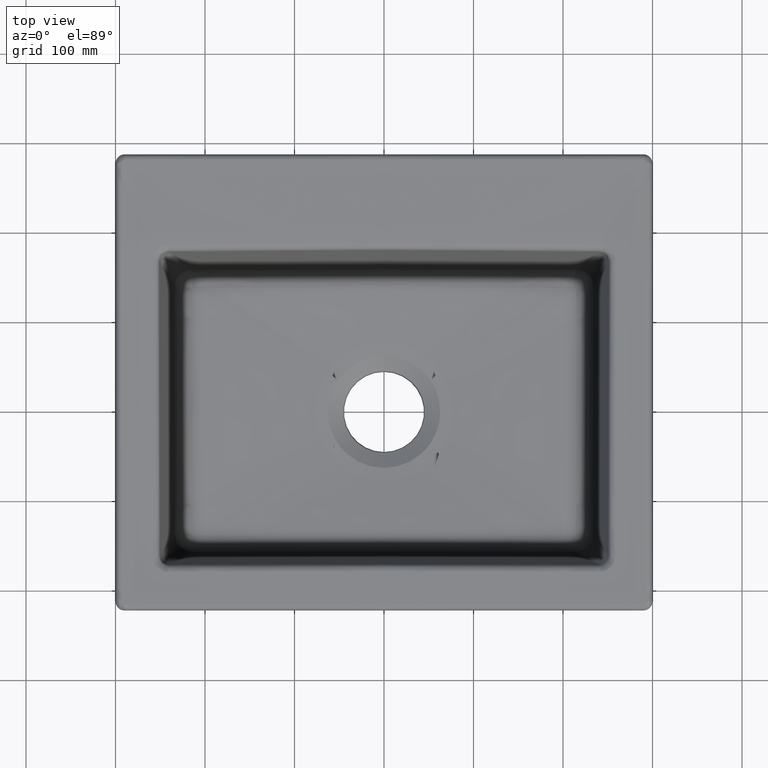
[diagram: clean part render]
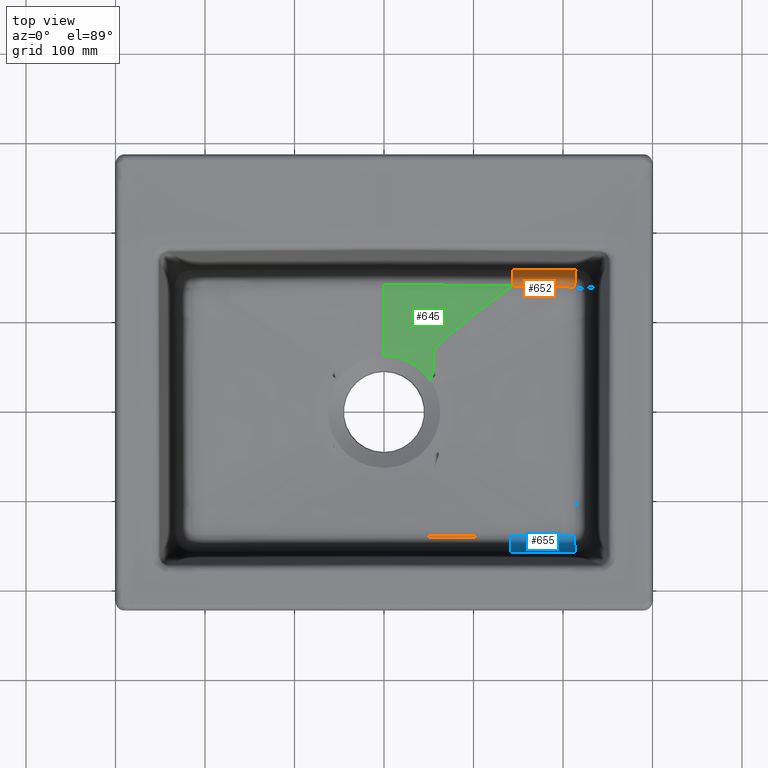
[diagram: same view with three faces highlighted in distinct colors, each labeled with its STEP entity id]
A machine part, top view with three faces highlighted in distinct colors.
Their STEP definitions:

[orange] entity #652 — the highlighted face is a freeform B-spline surface patch.
#88=(
BOUNDED_SURFACE()
B_SPLINE_SURFACE(2,3,((#7590,#7591,#7592,#7593,#7594,#7595),(#7596,#7597,
#7598,#7599,#7600,#7601),(#7602,#7603,#7604,#7605,#7606,#7607)),
 .UNSPECIFIED.,.F.,.F.,.F.)
B_SPLINE_SURFACE_WITH_KNOTS((3,3),(4,2,4),(0.,1.),(0.,0.413742758938872,
1.),.UNSPECIFIED.)
GEOMETRIC_REPRESENTATION_ITEM()
RATIONAL_B_SPLINE_SURFACE(((1.00307700598819,1.00311792466977,1.00315934199381,
1.00326099365629,1.00332165730036,1.00338471349754),(0.771876112746913,
0.768842472663706,0.765771864092816,0.758235586139558,0.753738088781949,
0.749063211687118),(1.,1.,1.,1.,1.,1.)))
REPRESENTATION_ITEM('')
SURFACE()
);
#286=(
BOUNDED_CURVE()
B_SPLINE_CURVE(2,(#7587,#7588,#7589),.UNSPECIFIED.,.F.,.F.)
B_SPLINE_CURVE_WITH_KNOTS((3,3),(0.,1.),.UNSPECIFIED.)
CURVE()
GEOMETRIC_REPRESENTATION_ITEM()
RATIONAL_B_SPLINE_CURVE((1.,0.773404626129603,1.))
REPRESENTATION_ITEM('')
);
#652=ADVANCED_FACE('',(#1111),#88,.F.);
#1111=FACE_OUTER_BOUND('',#1475,.T.);
#1475=EDGE_LOOP('',(#1914,#1915,#1916,#1917));
#1914=ORIENTED_EDGE('',*,*,#4074,.F.);
#1915=ORIENTED_EDGE('',*,*,#4082,.F.);
#1916=ORIENTED_EDGE('',*,*,#4085,.T.);
#1917=ORIENTED_EDGE('',*,*,#4086,.F.);
#3570=VERTEX_POINT('',#6610);
#3578=VERTEX_POINT('',#7368);
#3585=VERTEX_POINT('',#7517);
#3587=VERTEX_POINT('',#7586);
#4074=EDGE_CURVE('',#3578,#3570,#4915,.T.);
#4082=EDGE_CURVE('',#3585,#3578,#4921,.T.);
#4085=EDGE_CURVE('',#3585,#3587,#4924,.T.);
#4086=EDGE_CURVE('',#3570,#3587,#286,.T.);
#4915=B_SPLINE_CURVE_WITH_KNOTS('',3,(#7369,#7370,#7371,#7372),
 .UNSPECIFIED.,.F.,.F.,(4,4),(0.,1.),.UNSPECIFIED.);
#4921=B_SPLINE_CURVE_WITH_KNOTS('',3,(#7510,#7511,#7512,#7513,#7514,#7515,
#7516),.UNSPECIFIED.,.F.,.F.,(4,1,1,1,4),(0.,0.25,0.5,0.75,1.),
 .UNSPECIFIED.);
#4924=B_SPLINE_CURVE_WITH_KNOTS('',3,(#7582,#7583,#7584,#7585),
 .UNSPECIFIED.,.F.,.F.,(4,4),(0.,1.),.UNSPECIFIED.);
#6610=CARTESIAN_POINT('',(143.213835688709,140.421346586067,-191.337902037196));
#7368=CARTESIAN_POINT('',(212.8811973916,139.230496036239,-190.20972328752));
#7369=CARTESIAN_POINT('',(212.881173005976,139.23046644591,-190.20965082192));
#7370=CARTESIAN_POINT('',(186.720492449148,139.635409455536,-191.032082951962));
#7371=CARTESIAN_POINT('',(163.477435009731,140.041609264101,-191.312786718579));
#7372=CARTESIAN_POINT('',(143.213835750659,140.421346231353,-191.337898085801));
#7510=CARTESIAN_POINT('',(214.546661466373,158.261750682267,-172.832980509484));
#7511=CARTESIAN_POINT('',(214.524877193754,158.012819763941,-175.163526166143));
#7512=CARTESIAN_POINT('',(214.403893582472,156.63032873542,-179.726917566483));
#7513=CARTESIAN_POINT('',(214.020339254706,152.247417600024,-185.364011372703));
#7514=CARTESIAN_POINT('',(213.490486168482,146.192736884356,-189.092346693247));
#7515=CARTESIAN_POINT('',(213.085368951598,141.563424600581,-190.111057247534));
#7516=CARTESIAN_POINT('',(212.881213137508,139.230517040535,-190.209783810634));
#7517=CARTESIAN_POINT('',(214.547990154662,158.262261195666,-172.832980508093));
#7582=CARTESIAN_POINT('',(214.546661466468,158.261750682325,-172.832980508934));
#7583=CARTESIAN_POINT('',(190.798501300535,158.375508509999,-172.832980508934));
#7584=CARTESIAN_POINT('',(167.05034890571,158.490089830204,-172.832980508934));
#7585=CARTESIAN_POINT('',(143.302202150938,158.60549464293,-172.832980508934));
#7586=CARTESIAN_POINT('',(143.30220207373,158.605494643305,-172.832980508934));
#7587=CARTESIAN_POINT('',(143.213835558196,140.42134694124,-191.337905987739));
#7588=CARTESIAN_POINT('',(143.29317995438,156.748936065872,-189.87914832289));
#7589=CARTESIAN_POINT('',(143.302201955034,158.605494643882,-172.832980508934));
#7590=CARTESIAN_POINT('',(143.213009017288,140.251220003999,-191.35233209889));
#7591=CARTESIAN_POINT('',(156.273834651247,140.005350458719,-191.334653674804));
#7592=CARTESIAN_POINT('',(169.334739782715,139.773457517582,-191.209478757473));
#7593=CARTESIAN_POINT('',(200.90201012729,139.237002837256,-190.637073578079));
#7594=CARTESIAN_POINT('',(219.41084270142,139.057609945069,-190.074084008019));
#7595=CARTESIAN_POINT('',(237.912521026997,138.45884043711,-189.292787274432));
#7596=CARTESIAN_POINT('',(143.293101317311,156.732713712373,-190.028095384463));
#7597=CARTESIAN_POINT('',(156.354560460186,156.659703361888,-190.151028854788));
#7598=CARTESIAN_POINT('',(169.416082770336,156.599911061321,-190.169245511308));
#7599=CARTESIAN_POINT('',(201.039558463385,156.487476300728,-189.950485443536));
#7600=CARTESIAN_POINT('',(219.548897934171,156.448776761475,-189.601772392535));
#7601=CARTESIAN_POINT('',(238.107217839289,156.434821689662,-189.03595070886));
#7602=CARTESIAN_POINT('',(143.302202150938,158.60549464293,-172.832980508934));
#7603=CARTESIAN_POINT('',(156.363682866364,158.542021996228,-172.832980506189));
#7604=CARTESIAN_POINT('',(169.425165286902,158.478798455362,-172.832980509483));
#7605=CARTESIAN_POINT('',(200.994260334779,158.326591721577,-172.832980508157));
#7606=CARTESIAN_POINT('',(219.501875211259,158.2378595708,-172.83298051285));
#7607=CARTESIAN_POINT('',(238.00949433355,158.149627576179,-172.832980504441));

[blue] entity #655 — the highlighted face is a freeform B-spline surface patch.
#90=(
BOUNDED_SURFACE()
B_SPLINE_SURFACE(2,3,((#7774,#7775,#7776,#7777,#7778,#7779),(#7780,#7781,
#7782,#7783,#7784,#7785),(#7786,#7787,#7788,#7789,#7790,#7791)),
 .UNSPECIFIED.,.F.,.F.,.F.)
B_SPLINE_SURFACE_WITH_KNOTS((3,3),(4,2,4),(0.,1.),(0.,0.591743193893133,
1.),.UNSPECIFIED.)
GEOMETRIC_REPRESENTATION_ITEM()
RATIONAL_B_SPLINE_SURFACE(((1.00340360549189,1.00334257517243,1.00328301227672,
1.00318241104476,1.00314147166454,1.00310053917212),(0.748409792947587,
0.752921076862388,0.757323890672533,0.764760206320413,0.76778639345402,
0.770812071449796),(1.,1.,1.,1.,1.,1.)))
REPRESENTATION_ITEM('')
SURFACE()
);
#655=ADVANCED_FACE('',(#1114),#90,.F.);
#1114=FACE_OUTER_BOUND('',#1478,.T.);
#1478=EDGE_LOOP('',(#1926,#1927,#1928,#1929));
#1926=ORIENTED_EDGE('',*,*,#4067,.T.);
#1927=ORIENTED_EDGE('',*,*,#4091,.F.);
#1928=ORIENTED_EDGE('',*,*,#4092,.T.);
#1929=ORIENTED_EDGE('',*,*,#4093,.F.);
#3572=VERTEX_POINT('',#6805);
#3574=VERTEX_POINT('',#7093);
#3589=VERTEX_POINT('',#7657);
#3590=VERTEX_POINT('',#7762);
#4067=EDGE_CURVE('',#3574,#3572,#4908,.T.);
#4091=EDGE_CURVE('',#3589,#3572,#4929,.T.);
#4092=EDGE_CURVE('',#3589,#3590,#4930,.T.);
#4093=EDGE_CURVE('',#3574,#3590,#4931,.T.);
#4908=B_SPLINE_CURVE_WITH_KNOTS('',3,(#7053,#7054,#7055,#7056,#7057,#7058,
#7059,#7060,#7061,#7062,#7063,#7064,#7065,#7066,#7067,#7068,#7069,#7070,
#7071,#7072,#7073,#7074,#7075,#7076,#7077,#7078,#7079,#7080,#7081,#7082,
#7083,#7084,#7085,#7086,#7087,#7088,#7089,#7090,#7091,#7092),
 .UNSPECIFIED.,.F.,.F.,(4,2,2,2,2,2,2,2,2,1,1,2,1,2,2,2,2,2,2,1,1,1,4),
(0.,0.125000000000008,0.140625000000009,0.15625000000001,0.187500000000012,
0.250000000000018,0.28125000000002,0.285156250000021,0.289062500000021,
0.296875000000021,0.312500000000022,0.375000000000021,0.40625000000002,
0.421875000000021,0.437500000000021,0.500000000000018,0.562500000000014,
0.570312500000014,0.578125000000014,0.593750000000015,0.625000000000014,
0.750000000000009,1.),.UNSPECIFIED.);
#4929=B_SPLINE_CURVE_WITH_KNOTS('',3,(#7658,#7659,#7660,#7661,#7662,#7663,
#7664,#7665,#7666,#7667),.UNSPECIFIED.,.F.,.F.,(4,2,2,2,4),(0.,0.250012143482046,
0.500024286964094,0.75003643044614,1.),.UNSPECIFIED.);
#4930=B_SPLINE_CURVE_WITH_KNOTS('',3,(#7756,#7757,#7758,#7759,#7760,#7761),
 .UNSPECIFIED.,.F.,.F.,(4,2,4),(0.,0.550003489536306,1.),.UNSPECIFIED.);
#4931=B_SPLINE_CURVE_WITH_KNOTS('',3,(#7763,#7764,#7765,#7766,#7767,#7768,
#7769,#7770,#7771,#7772,#7773),.UNSPECIFIED.,.F.,.F.,(4,1,1,1,1,1,1,1,4),
(0.,0.125000075672271,0.250000151344543,0.375000227016814,0.500000302689086,
0.625000378361357,0.750000454033628,0.8750005297059,1.),.UNSPECIFIED.);
#6805=CARTESIAN_POINT('',(141.269163564637,-138.983223211528,-191.374871971036));
#7053=CARTESIAN_POINT('',(212.395710851262,-138.216247405746,-190.211363066632));
#7054=CARTESIAN_POINT('',(210.262698658806,-138.241458849857,-190.278725334559));
#7055=CARTESIAN_POINT('',(207.402984458089,-138.27328596207,-190.36645195397));
#7056=CARTESIAN_POINT('',(203.368243660899,-138.313587070848,-190.47900771426));
#7057=CARTESIAN_POINT('',(202.908584135587,-138.318133030657,-190.491701104691));
#7058=CARTESIAN_POINT('',(201.966555109596,-138.327363154408,-190.517421650377));
#7059=CARTESIAN_POINT('',(201.422804163125,-138.332637581006,-190.532098878328));
#7060=CARTESIAN_POINT('',(199.941987990655,-138.346858852703,-190.571570075952));
#7061=CARTESIAN_POINT('',(199.021093065568,-138.355535872184,-190.595490925975));
#7062=CARTESIAN_POINT('',(196.457358334614,-138.379493247664,-190.660780835424));
#7063=CARTESIAN_POINT('',(195.013468803446,-138.392732266952,-190.695710977575));
#7064=CARTESIAN_POINT('',(193.245538538715,-138.408968500805,-190.737437620316));
#7065=CARTESIAN_POINT('',(192.7225457198,-138.413767168555,-190.749559999103));
#7066=CARTESIAN_POINT('',(192.208785748715,-138.418476238878,-190.761339495308));
#7067=CARTESIAN_POINT('',(192.152737514992,-138.418989875078,-190.762622476599));
#7068=CARTESIAN_POINT('',(192.042713462438,-138.419997934034,-190.765137187718));
#7069=CARTESIAN_POINT('',(191.911437712481,-138.421200642695,-190.768132465688));
#7070=CARTESIAN_POINT('',(191.601959421117,-138.424036646506,-190.775167428339));
#7071=CARTESIAN_POINT('',(190.986634058047,-138.429677393542,-190.789072500281));
#7072=CARTESIAN_POINT('',(188.770384592728,-138.450032798622,-190.838275312774));
#7073=CARTESIAN_POINT('',(186.876654277525,-138.467677113549,-190.877800280659));
#7074=CARTESIAN_POINT('',(184.72037970415,-138.488249414677,-190.920916799449));
#7075=CARTESIAN_POINT('',(183.671292840919,-138.498381377426,-190.941395654021));
#7076=CARTESIAN_POINT('',(182.665781686753,-138.508292474616,-190.96037394908));
#7077=CARTESIAN_POINT('',(182.005124404111,-138.514850098544,-190.972705198233));
#7078=CARTESIAN_POINT('',(181.744207800428,-138.517455471409,-190.977514772726));
#7079=CARTESIAN_POINT('',(180.462050245092,-138.530492620173,-191.000971760387));
#7080=CARTESIAN_POINT('',(179.208301479194,-138.543659926079,-191.02324682418));
#7081=CARTESIAN_POINT('',(176.244755766784,-138.575376648437,-191.072627498609));
#7082=CARTESIAN_POINT('',(174.534959190431,-138.593972231175,-191.099731160742));
#7083=CARTESIAN_POINT('',(172.354911026948,-138.618131642752,-191.131266131332));
#7084=CARTESIAN_POINT('',(172.109120577948,-138.620861073163,-191.134784019085));
#7085=CARTESIAN_POINT('',(171.610413928167,-138.626410697292,-191.141841160374));
#7086=CARTESIAN_POINT('',(171.461621168128,-138.628069737811,-191.143920283284));
#7087=CARTESIAN_POINT('',(170.905956876117,-138.634267417658,-191.151645734535));
#7088=CARTESIAN_POINT('',(169.794628242026,-138.646687500181,-191.166834586715));
#7089=CARTESIAN_POINT('',(165.719756034468,-138.692501890689,-191.219648093369));
#7090=CARTESIAN_POINT('',(156.088235602037,-138.802983601538,-191.321854133333));
#7091=CARTESIAN_POINT('',(147.19759232435,-138.910123747859,-191.366576149756));
#7092=CARTESIAN_POINT('',(141.270495582658,-138.98410756711,-191.374783816506));
#7093=CARTESIAN_POINT('',(212.395708241728,-138.216244264892,-190.211281611804));
#7657=CARTESIAN_POINT('',(141.238740536492,-157.134868575765,-172.832980509053));
#7658=CARTESIAN_POINT('',(141.238124676014,-157.134867575759,-172.832980508935));
#7659=CARTESIAN_POINT('',(141.238494684551,-156.906998140621,-175.027750010344));
#7660=CARTESIAN_POINT('',(141.239443374177,-156.322748461809,-177.316398004516));
#7661=CARTESIAN_POINT('',(141.242654845018,-154.344966944579,-181.681938132374));
#7662=CARTESIAN_POINT('',(141.244920981401,-152.949368829295,-183.750277739652));
#7663=CARTESIAN_POINT('',(141.250464684684,-149.535283996641,-187.237549394667));
#7664=CARTESIAN_POINT('',(141.253731519428,-147.523406667932,-188.649730370048));
#7665=CARTESIAN_POINT('',(141.260593397293,-143.297525168525,-190.621067357515));
#7666=CARTESIAN_POINT('',(141.264175137367,-141.091713666819,-191.182719898681));
#7667=CARTESIAN_POINT('',(141.267598852665,-138.983221586621,-191.374882019974));
#7756=CARTESIAN_POINT('',(141.238849218468,-157.134868752252,-172.832980508935));
#7757=CARTESIAN_POINT('',(154.566934117305,-157.15651055152,-172.832980505204));
#7758=CARTESIAN_POINT('',(167.895019221762,-157.178065900871,-172.832980509314));
#7759=CARTESIAN_POINT('',(192.127747895531,-157.21710001809,-172.832980508623));
#7760=CARTESIAN_POINT('',(203.032391410848,-157.234607365206,-172.832980510009));
#7761=CARTESIAN_POINT('',(213.937035087009,-157.252056843215,-172.832980509551));
#7762=CARTESIAN_POINT('',(213.937109503907,-157.251990066908,-172.832958751892));
#7763=CARTESIAN_POINT('',(212.395708605202,-138.216247182914,-190.211349205204));
#7764=CARTESIAN_POINT('',(212.490285808926,-139.383435000883,-190.161254586984));
#7765=CARTESIAN_POINT('',(212.678745964104,-141.70887365047,-189.859949092102));
#7766=CARTESIAN_POINT('',(212.951286509274,-145.072076963672,-188.82601128124));
#7767=CARTESIAN_POINT('',(213.205831156175,-148.213160844125,-187.237365967298));
#7768=CARTESIAN_POINT('',(213.434449891894,-151.034323213298,-185.127927267241));
#7769=CARTESIAN_POINT('',(213.629139598807,-153.436805868748,-182.548233848333));
#7770=CARTESIAN_POINT('',(213.783329250304,-155.339527007762,-179.577860637645));
#7771=CARTESIAN_POINT('',(213.890985240296,-156.668018029824,-176.307289671188));
#7772=CARTESIAN_POINT('',(213.92843716725,-157.130219772371,-173.998706700113));
#7773=CARTESIAN_POINT('',(213.938310750947,-157.252057114879,-172.832997446302));
#7774=CARTESIAN_POINT('',(239.207691875541,-137.554349812905,-189.214936688012));
#7775=CARTESIAN_POINT('',(219.891535291892,-138.083695614295,-190.046313234941));
#7776=CARTESIAN_POINT('',(200.571721081184,-138.144931950499,-190.643145632578));
#7777=CARTESIAN_POINT('',(167.924954348616,-138.494682566606,-191.240064475146));
#7778=CARTESIAN_POINT('',(154.596425406629,-138.647433800666,-191.369445875135));
#7779=CARTESIAN_POINT('',(141.267874816809,-138.813191550315,-191.38958645647));
#7780=CARTESIAN_POINT('',(239.294903855849,-155.599308442356,-188.974936012102));
#7781=CARTESIAN_POINT('',(219.922253858963,-155.510240083831,-189.578997267253));
#7782=CARTESIAN_POINT('',(200.603389096457,-155.445056023746,-189.949343222349));
#7783=CARTESIAN_POINT('',(167.897698559524,-155.374355287525,-190.176153242412));
#7784=CARTESIAN_POINT('',(154.5693748525,-155.356546969106,-190.157478852399));
#7785=CARTESIAN_POINT('',(141.241035667663,-155.349136792938,-190.032599648991));
#7786=CARTESIAN_POINT('',(239.178882336629,-157.292345181298,-172.832980503574));
#7787=CARTESIAN_POINT('',(219.860289244343,-157.261590012523,-172.832980513157));
#7788=CARTESIAN_POINT('',(200.541696627181,-157.230653219856,-172.832980508383));
#7789=CARTESIAN_POINT('',(167.894777704868,-157.178065511835,-172.832980509314));
#7790=CARTESIAN_POINT('',(154.566451083527,-157.156509770316,-172.832980505204));
#7791=CARTESIAN_POINT('',(141.238124667811,-157.134867575745,-172.832980508935));

[green] entity #645 — the highlighted face is a freeform B-spline surface patch.
#285=(
BOUNDED_CURVE()
B_SPLINE_CURVE(3,(#6605,#6606,#6607,#6608),.UNSPECIFIED.,.F.,.F.)
B_SPLINE_CURVE_WITH_KNOTS((4,4),(0.,1.),.UNSPECIFIED.)
CURVE()
GEOMETRIC_REPRESENTATION_ITEM()
RATIONAL_B_SPLINE_CURVE((0.999999992173693,0.999999992189371,0.999999992111018,
0.999999992004931))
REPRESENTATION_ITEM('')
);
#645=ADVANCED_FACE('',(#1104),#1006,.F.);
#1006=B_SPLINE_SURFACE_WITH_KNOTS('',3,3,((#6711,#6712,#6713,#6714,#6715,
#6716,#6717),(#6718,#6719,#6720,#6721,#6722,#6723,#6724),(#6725,#6726,#6727,
#6728,#6729,#6730,#6731),(#6732,#6733,#6734,#6735,#6736,#6737,#6738),(#6739,
#6740,#6741,#6742,#6743,#6744,#6745),(#6746,#6747,#6748,#6749,#6750,#6751,
#6752),(#6753,#6754,#6755,#6756,#6757,#6758,#6759),(#6760,#6761,#6762,#6763,
#6764,#6765,#6766),(#6767,#6768,#6769,#6770,#6771,#6772,#6773),(#6774,#6775,
#6776,#6777,#6778,#6779,#6780),(#6781,#6782,#6783,#6784,#6785,#6786,#6787)),
 .UNSPECIFIED.,.F.,.F.,.F.,(4,1,1,1,1,1,1,1,4),(4,3,4),(0.,0.125,0.25,0.375,
0.5,0.625,0.75,0.875,1.),(0.,0.99009900990099,1.),.UNSPECIFIED.);
#1104=FACE_OUTER_BOUND('',#1468,.T.);
#1468=EDGE_LOOP('',(#1880,#1881,#1882,#1883));
#1880=ORIENTED_EDGE('',*,*,#4060,.F.);
#1881=ORIENTED_EDGE('',*,*,#4061,.T.);
#1882=ORIENTED_EDGE('',*,*,#4056,.F.);
#1883=ORIENTED_EDGE('',*,*,#4062,.T.);
#3563=VERTEX_POINT('',#6561);
#3566=VERTEX_POINT('',#6587);
#3569=VERTEX_POINT('',#6609);
#3570=VERTEX_POINT('',#6610);
#4056=EDGE_CURVE('',#3566,#3563,#4901,.T.);
#4060=EDGE_CURVE('',#3569,#3570,#285,.T.);
#4061=EDGE_CURVE('',#3569,#3563,#4902,.T.);
#4062=EDGE_CURVE('',#3566,#3570,#4903,.T.);
#4901=B_SPLINE_CURVE_WITH_KNOTS('',3,(#6588,#6589,#6590,#6591,#6592,#6593,
#6594,#6595,#6596,#6597),.UNSPECIFIED.,.F.,.F.,(4,2,2,2,4),(0.,0.25,0.5,
0.75,1.),.UNSPECIFIED.);
#4902=B_SPLINE_CURVE_WITH_KNOTS('',3,(#6611,#6612,#6613,#6614,#6615,#6616,
#6617,#6618,#6619,#6620,#6621,#6622,#6623,#6624,#6625,#6626,#6627),
 .UNSPECIFIED.,.F.,.F.,(4,2,2,1,1,1,2,2,2,4),(0.,0.249999999999992,0.374999999999989,
0.437499999999987,0.468749999999986,0.484374999999986,0.488281249999986,
0.492187499999986,0.499999999999985,1.),.UNSPECIFIED.);
#4903=B_SPLINE_CURVE_WITH_KNOTS('',3,(#6628,#6629,#6630,#6631,#6632,#6633,
#6634,#6635,#6636,#6637,#6638,#6639,#6640,#6641,#6642,#6643,#6644,#6645,
#6646,#6647,#6648,#6649,#6650,#6651,#6652,#6653,#6654,#6655,#6656,#6657,
#6658,#6659,#6660,#6661,#6662,#6663,#6664,#6665,#6666,#6667,#6668,#6669,
#6670,#6671,#6672,#6673,#6674,#6675,#6676,#6677,#6678,#6679,#6680,#6681,
#6682,#6683,#6684,#6685,#6686,#6687,#6688,#6689,#6690,#6691,#6692,#6693,
#6694,#6695,#6696,#6697,#6698,#6699,#6700,#6701,#6702,#6703,#6704,#6705,
#6706,#6707,#6708,#6709,#6710),.UNSPECIFIED.,.F.,.F.,(4,2,2,2,1,1,1,2,2,
2,2,2,2,2,2,1,2,2,2,2,1,1,2,2,2,2,2,1,1,1,2,2,2,2,2,2,2,2,2,2,2,2,1,1,2,
2,4),(0.,0.0312500000000004,0.0468750000000005,0.0546875000000006,0.0585937500000007,
0.0605468750000007,0.0615234375000007,0.0620117187500006,0.0625000000000006,
0.0703125000000003,0.0742187500000001,0.076171875,0.0781249999999999,0.0859374999999998,
0.0898437499999997,0.0917968749999996,0.0927734374999996,0.0937499999999996,
0.109374999999997,0.117187499999996,0.121093749999996,0.123046874999996,
0.124023437499995,0.124999999999995,0.187499999999982,0.218749999999975,
0.234374999999972,0.24218749999997,0.246093749999969,0.248046874999969,
0.249023437499969,0.249999999999969,0.374999999999979,0.437499999999983,
0.468749999999986,0.484374999999987,0.492187499999988,0.499999999999988,
0.624999999999995,0.687499999999999,0.718750000000001,0.734375000000002,
0.742187500000003,0.746093750000003,0.748046875000003,0.750000000000003,
1.),.UNSPECIFIED.);
#6561=CARTESIAN_POINT('',(1.57980973732951E-13,62.7624659108409,-199.832980489374));
#6587=CARTESIAN_POINT('',(52.0629073764796,35.0511171394943,-199.832980508934));
#6588=CARTESIAN_POINT('',(52.0629073764795,35.0511171394943,-199.832980508934));
#6589=CARTESIAN_POINT('',(49.1797240485121,39.333631330297,-199.832980508934));
#6590=CARTESIAN_POINT('',(45.8357404364214,43.1770957164454,-199.832979896847));
#6591=CARTESIAN_POINT('',(38.2572836224557,50.0155673720489,-199.832979741132));
#6592=CARTESIAN_POINT('',(33.9929593687454,53.0048534290093,-199.832981709259));
#6593=CARTESIAN_POINT('',(25.0074378318653,57.7898291256899,-199.832979300899));
#6594=CARTESIAN_POINT('',(20.1749273708309,59.6520694219108,-199.832980609979));
#6595=CARTESIAN_POINT('',(10.2293311303918,62.135006666836,-199.832975145199));
#6596=CARTESIAN_POINT('',(5.16263914425132,62.7624585807852,-199.83298478698));
#6597=CARTESIAN_POINT('',(2.61198996323488E-13,62.76246604988,-199.832980474696));
#6605=CARTESIAN_POINT('',(-3.00064115445123E-9,142.12284143355,-191.454663846159));
#6606=CARTESIAN_POINT('',(47.7395406718757,141.88312122612,-191.451420884323));
#6607=CARTESIAN_POINT('',(95.4773726894927,141.315920807586,-191.397046040717));
#6608=CARTESIAN_POINT('',(143.213835566132,140.421347386685,-191.337905947925));
#6609=CARTESIAN_POINT('',(0.,142.122841873135,-191.454663972532));
#6610=CARTESIAN_POINT('',(143.213835688709,140.421346586067,-191.337902037196));
#6611=CARTESIAN_POINT('',(-4.99531338698161E-6,142.122842348109,-191.454664018839));
#6612=CARTESIAN_POINT('',(-5.36948843206893E-5,134.157015449285,-192.29565106158));
#6613=CARTESIAN_POINT('',(-0.000334258533348198,126.890734056261,-193.062784428368));
#6614=CARTESIAN_POINT('',(-0.000304047597687523,117.040619979414,-194.102703964622));
#6615=CARTESIAN_POINT('',(-0.000237275696504557,113.932133359172,-194.430880391051));
#6616=CARTESIAN_POINT('',(-0.00011847867585989,109.531729930161,-194.895449902214));
#6617=CARTESIAN_POINT('',(-5.61523458599481E-5,107.397109848387,-195.120810875674));
#6618=CARTESIAN_POINT('',(-1.11364252370051E-5,105.0214875591,-195.371615392667));
#6619=CARTESIAN_POINT('',(-1.7420487105461E-6,103.945162594072,-195.485247560499));
#6620=CARTESIAN_POINT('',(-4.02787831394228E-7,103.535461089442,-195.528501473369));
#6621=CARTESIAN_POINT('',(-5.8007411483594E-8,103.371922058456,-195.545766977152));
#6622=CARTESIAN_POINT('',(1.96679570324531E-7,103.330305535257,-195.550160608615));
#6623=CARTESIAN_POINT('',(-5.16630317565909E-7,102.902782817093,-195.5952959799));
#6624=CARTESIAN_POINT('',(-5.1114476913546E-6,102.618963216413,-195.625260008608));
#6625=CARTESIAN_POINT('',(-0.000547121693381711,84.2483993459448,-197.56471765155));
#6626=CARTESIAN_POINT('',(-6.30705496027089E-11,71.0573581237958,-198.957345213401));
#6627=CARTESIAN_POINT('',(5.22298909917919E-15,62.7624657718019,-199.832980504051));
#6628=CARTESIAN_POINT('',(52.0629073764795,35.0511171394943,-199.832980508934));
#6629=CARTESIAN_POINT('',(52.9703593830804,37.6735829346079,-199.730911635944));
#6630=CARTESIAN_POINT('',(53.837383337006,40.531601650731,-199.613930497008));
#6631=CARTESIAN_POINT('',(54.8447567545347,45.0860288338037,-199.416090389687));
#6632=CARTESIAN_POINT('',(55.1313492603394,46.6485818512542,-199.34641562076));
#6633=CARTESIAN_POINT('',(55.4556390355228,49.0470479674786,-199.23631136764));
#6634=CARTESIAN_POINT('',(55.5461184634451,49.8556350824029,-199.198677933312));
#6635=CARTESIAN_POINT('',(55.6512900798664,51.080603963198,-199.140829756887));
#6636=CARTESIAN_POINT('',(55.6962375547614,51.6961098690136,-199.111556162441));
#6637=CARTESIAN_POINT('',(55.7343927175763,52.4191408047591,-199.07679199968));
#6638=CARTESIAN_POINT('',(55.7497837878228,52.7818477091135,-199.059257009323));
#6639=CARTESIAN_POINT('',(55.7555775826022,52.9375441391646,-199.051709247246));
#6640=CARTESIAN_POINT('',(55.7592604243277,53.0413969286586,-199.046670124482));
#6641=CARTESIAN_POINT('',(55.7593149023199,53.0402412009688,-199.046728617599));
#6642=CARTESIAN_POINT('',(55.8164032856263,54.8267883705599,-198.959883472426));
#6643=CARTESIAN_POINT('',(55.7776118619804,56.2591078824376,-198.887576748704));
#6644=CARTESIAN_POINT('',(55.6920303205128,58.075952470499,-198.79326148837));
#6645=CARTESIAN_POINT('',(55.6585535603418,58.6261568807889,-198.764180539134));
#6646=CARTESIAN_POINT('',(55.6115479173559,59.3723938839716,-198.724095321592));
#6647=CARTESIAN_POINT('',(55.5963921578402,59.6079528484782,-198.71132295013));
#6648=CARTESIAN_POINT('',(55.5686166007943,60.0532698605829,-198.686956942643));
#6649=CARTESIAN_POINT('',(55.5586577489954,60.2139247231054,-198.678104638553));
#6650=CARTESIAN_POINT('',(55.4919423684327,61.444991212319,-198.609376637351));
#6651=CARTESIAN_POINT('',(55.4666153049144,62.3545098271532,-198.555907359879));
#6652=CARTESIAN_POINT('',(55.4976405522817,63.6170006246355,-198.477973128904));
#6653=CARTESIAN_POINT('',(55.519440121212,64.0208413350877,-198.452373332785));
#6654=CARTESIAN_POINT('',(55.572310479033,64.6022959868954,-198.414541059914));
#6655=CARTESIAN_POINT('',(55.6037845601128,64.8869443887349,-198.395766778806));
#6656=CARTESIAN_POINT('',(55.6433425119767,65.1626743947917,-198.377205280688));
#6657=CARTESIAN_POINT('',(55.6715669938131,65.3445333214193,-198.364878233719));
#6658=CARTESIAN_POINT('',(55.6937165127914,65.474045499759,-198.356018848406));
#6659=CARTESIAN_POINT('',(55.8447058972797,66.3141087709554,-198.298274370539));
#6660=CARTESIAN_POINT('',(56.0734907026784,67.116138271505,-198.239861835014));
#6661=CARTESIAN_POINT('',(56.5546313347062,68.3400283625717,-198.14614584425));
#6662=CARTESIAN_POINT('',(56.7380315396523,68.7514644341598,-198.113890982749));
#6663=CARTESIAN_POINT('',(57.0488930098593,69.3742835243984,-198.063984393628));
#6664=CARTESIAN_POINT('',(57.2132665352915,69.6871091410205,-198.038650024851));
#6665=CARTESIAN_POINT('',(57.4209814150289,70.0546483651926,-198.008426381397));
#6666=CARTESIAN_POINT('',(57.513452438307,70.2127275452986,-197.995330488514));
#6667=CARTESIAN_POINT('',(57.5758702929438,70.3182397853764,-197.986568137073));
#6668=CARTESIAN_POINT('',(57.625824485564,70.4014182203323,-197.979637683186));
#6669=CARTESIAN_POINT('',(58.5112098468809,71.8654495375164,-197.857468114252));
#6670=CARTESIAN_POINT('',(59.8258177882373,73.5717307831745,-197.706567252016));
#6671=CARTESIAN_POINT('',(62.4983222117953,76.5383600983721,-197.434299720964));
#6672=CARTESIAN_POINT('',(63.5064315670454,77.5951682382416,-197.335891170997));
#6673=CARTESIAN_POINT('',(65.2036480728239,79.2841209803116,-197.176799286622));
#6674=CARTESIAN_POINT('',(65.8002610306143,79.8643994745244,-197.121855481926));
#6675=CARTESIAN_POINT('',(66.7429236158128,80.7610276912025,-197.036570010026));
#6676=CARTESIAN_POINT('',(67.2261937180926,81.2158948327165,-196.993209832862));
#6677=CARTESIAN_POINT('',(67.8112469896452,81.7581043127205,-196.94136743738));
#6678=CARTESIAN_POINT('',(68.1091287101489,82.0321000999713,-196.915132359107));
#6679=CARTESIAN_POINT('',(68.2379447599181,82.1501472696242,-196.90382149402));
#6680=CARTESIAN_POINT('',(68.3240787826527,82.2289833504402,-196.896265970602));
#6681=CARTESIAN_POINT('',(68.3941417057611,82.2930012821287,-196.890128666547));
#6682=CARTESIAN_POINT('',(70.5170124630533,84.2312457554012,-196.704286184048));
#6683=CARTESIAN_POINT('',(73.5142827682017,86.8417939863112,-196.451567096773));
#6684=CARTESIAN_POINT('',(79.4677618949677,91.8103710480579,-195.970012599597));
#6685=CARTESIAN_POINT('',(81.6961268688339,93.6421895509323,-195.792415122827));
#6686=CARTESIAN_POINT('',(85.428195000355,96.6576747812679,-195.500399941107));
#6687=CARTESIAN_POINT('',(86.7371975668645,97.707474395239,-195.39879171944));
#6688=CARTESIAN_POINT('',(88.8016758811914,99.3497790845424,-195.239974645297));
#6689=CARTESIAN_POINT('',(89.5066681665355,99.9084823025735,-195.185968163642));
#6690=CARTESIAN_POINT('',(90.5898779835565,100.763527804938,-195.10335725575));
#6691=CARTESIAN_POINT('',(90.9552350576408,101.051374801938,-195.075553422218));
#6692=CARTESIAN_POINT('',(91.694605009925,101.632747764066,-195.019412026683));
#6693=CARTESIAN_POINT('',(92.0291132861963,101.895331204895,-194.994060877828));
#6694=CARTESIAN_POINT('',(99.1331939913772,107.459700382987,-194.457016608272));
#6695=CARTESIAN_POINT('',(104.683980035062,111.698749305171,-194.051212714802));
#6696=CARTESIAN_POINT('',(111.032498450783,116.510035727371,-193.591981179645));
#6697=CARTESIAN_POINT('',(112.820450051444,117.856140486229,-193.463816385434));
#6698=CARTESIAN_POINT('',(114.98833920938,119.484702264156,-193.308937770381));
#6699=CARTESIAN_POINT('',(115.625384066531,119.962472922771,-193.263539661406));
#6700=CARTESIAN_POINT('',(116.450656722668,120.581137237318,-193.204784642011));
#6701=CARTESIAN_POINT('',(116.704037376545,120.77102776723,-193.186756659556));
#6702=CARTESIAN_POINT('',(117.0513532588,121.031330763169,-193.162050221891));
#6703=CARTESIAN_POINT('',(117.216822945682,121.155349160022,-193.150280887063));
#6704=CARTESIAN_POINT('',(117.395505459845,121.289297437235,-193.137571793437));
#6705=CARTESIAN_POINT('',(117.469001861894,121.344401769758,-193.132343995527));
#6706=CARTESIAN_POINT('',(117.517314234609,121.380626346699,-193.128907453921));
#6707=CARTESIAN_POINT('',(117.499007710763,121.366897175059,-193.130209761349));
#6708=CARTESIAN_POINT('',(125.960229448956,127.711922830284,-192.528313365488));
#6709=CARTESIAN_POINT('',(134.524382777655,134.049207414347,-191.932434062041));
#6710=CARTESIAN_POINT('',(143.213835773676,140.421346937202,-191.337905987473));
#6711=CARTESIAN_POINT('',(-230.579930299908,156.109167906951,-190.066554172048));
#6712=CARTESIAN_POINT('',(-171.043837117032,115.801540286951,-193.322029617677));
#6713=CARTESIAN_POINT('',(-111.507743934156,75.4939126669514,-196.577505063306));
#6714=CARTESIAN_POINT('',(-51.9716507512807,35.1862850469516,-199.832980508934));
#6715=CARTESIAN_POINT('',(-51.3762898194519,34.7832087707516,-199.86553526339));
#6716=CARTESIAN_POINT('',(-50.7809288876232,34.3801324945516,-199.898090017847));
#6717=CARTESIAN_POINT('',(-50.1855679557944,33.9770562183516,-199.930644772303));
#6718=CARTESIAN_POINT('',(-211.504552330858,156.069091133612,-190.066554172048));
#6719=CARTESIAN_POINT('',(-157.372051875475,117.185201315806,-193.322029617677));
#6720=CARTESIAN_POINT('',(-103.239551420092,78.301311498,-196.577505063306));
#6721=CARTESIAN_POINT('',(-49.1070509647095,39.4174216801941,-199.832980508934));
#6722=CARTESIAN_POINT('',(-48.5657259601557,39.028582782016,-199.86553526339));
#6723=CARTESIAN_POINT('',(-48.0244009556018,38.639743883838,-199.898090017847));
#6724=CARTESIAN_POINT('',(-47.483075951048,38.2509049856599,-199.930644772303));
#6725=CARTESIAN_POINT('',(-173.329482552815,155.980495785543,-190.066554172048));
#6726=CARTESIAN_POINT('',(-129.666121876528,119.712446849186,-193.322029617677));
#6727=CARTESIAN_POINT('',(-86.0027612002416,83.4443979128293,-196.577505063306));
#6728=CARTESIAN_POINT('',(-42.3394005239549,47.1763489764727,-199.832980508934));
#6729=CARTESIAN_POINT('',(-41.902766917192,46.8136684871091,-199.86553526339));
#6730=CARTESIAN_POINT('',(-41.4661333104292,46.4509879977456,-199.898090017847));
#6731=CARTESIAN_POINT('',(-41.0294997036663,46.088307508382,-199.930644772303));
#6732=CARTESIAN_POINT('',(-116.008012897411,155.806160922216,-190.066554172048));
#6733=CARTESIAN_POINT('',(-87.2302754325951,122.542336307274,-193.322029617677));
#6734=CARTESIAN_POINT('',(-58.4525379677796,89.2785116923328,-196.577505063306));
#6735=CARTESIAN_POINT('',(-29.6748005029642,56.0146870773912,-199.832980508934));
#6736=CARTESIAN_POINT('',(-29.387023128316,55.6820488312418,-199.86553526339));
#6737=CARTESIAN_POINT('',(-29.0992457536679,55.3494105850924,-199.898090017847));
#6738=CARTESIAN_POINT('',(-28.8114683790197,55.016772338943,-199.930644772303));
#6739=CARTESIAN_POINT('',(-58.6452457424609,155.578124945734,-190.066554172048));
#6740=CARTESIAN_POINT('',(-44.1797514552809,124.228114760423,-193.322029617677));
#6741=CARTESIAN_POINT('',(-29.7142571681009,92.8781045751116,-196.577505063306));
#6742=CARTESIAN_POINT('',(-15.2487628809209,61.5280943898005,-199.832980508934));
#6743=CARTESIAN_POINT('',(-15.1041079380491,61.2145942879474,-199.86553526339));
#6744=CARTESIAN_POINT('',(-14.9594529951773,60.9010941860943,-199.898090017847));
#6745=CARTESIAN_POINT('',(-14.8147980523055,60.5875940842412,-199.930644772303));
#6746=CARTESIAN_POINT('',(-1.2611933017162,155.288749543107,-190.066554172048));
#6747=CARTESIAN_POINT('',(-0.813342380736687,124.655676461001,-193.322029617677));
#6748=CARTESIAN_POINT('',(-0.365491459757034,94.0226033788957,-196.577505063306));
#6749=CARTESIAN_POINT('',(0.082359461222592,63.3895302967902,-199.832980508934));
#6750=CARTESIAN_POINT('',(0.0868379704323883,63.0831995659692,-199.86553526339));
#6751=CARTESIAN_POINT('',(0.0913164796421845,62.7768688351481,-199.898090017847));
#6752=CARTESIAN_POINT('',(0.0957949888519808,62.470538104327,-199.930644772303));
#6753=CARTESIAN_POINT('',(56.1228797758288,154.935448794527,-190.066554172048));
#6754=CARTESIAN_POINT('',(42.551450875445,123.786386704191,-193.322029617677));
#6755=CARTESIAN_POINT('',(28.9800219750616,92.6373246138554,-196.577505063306));
#6756=CARTESIAN_POINT('',(15.408593074678,61.4882625235196,-199.832980508934));
#6757=CARTESIAN_POINT('',(15.2728787856742,61.1767719026162,-199.86553526339));
#6758=CARTESIAN_POINT('',(15.1371644966703,60.8652812817129,-199.898090017847));
#6759=CARTESIAN_POINT('',(15.0014502076665,60.5537906608095,-199.930644772303));
#6760=CARTESIAN_POINT('',(113.485715633727,154.520864830394,-190.066554172048));
#6761=CARTESIAN_POINT('',(85.5972288625855,121.659705736782,-193.322029617677));
#6762=CARTESIAN_POINT('',(57.7087420914445,88.7985466431689,-196.577505063305));
#6763=CARTESIAN_POINT('',(29.8202553203034,55.9373875495562,-199.832980508934));
#6764=CARTESIAN_POINT('',(29.541370452592,55.6087759586201,-199.86553526339));
#6765=CARTESIAN_POINT('',(29.2624855848806,55.2801643676839,-199.898090017847));
#6766=CARTESIAN_POINT('',(28.9836007171692,54.9515527767478,-199.930644772303));
#6767=CARTESIAN_POINT('',(170.80732197536,154.052688902838,-190.066554172048));
#6768=CARTESIAN_POINT('',(128.025496660334,118.390515980453,-193.322029617677));
#6769=CARTESIAN_POINT('',(85.2436713453072,82.7283430580683,-196.577505063305));
#6770=CARTESIAN_POINT('',(42.4618460302809,47.0661701356834,-199.832980508934));
#6771=CARTESIAN_POINT('',(42.0340277771306,46.7095484064595,-199.86553526339));
#6772=CARTESIAN_POINT('',(41.6062095239804,46.3529266772357,-199.898090017847));
#6773=CARTESIAN_POINT('',(41.1783912708301,45.9963049480119,-199.930644772303));
#6774=CARTESIAN_POINT('',(208.982549477351,153.713047537329,-190.066554172048));
#6775=CARTESIAN_POINT('',(155.724803629292,115.571926089314,-193.322029617677));
#6776=CARTESIAN_POINT('',(102.467057781232,77.4308046412983,-196.577505063305));
#6777=CARTESIAN_POINT('',(49.2093119331726,39.2896831932829,-199.832980508934));
#6778=CARTESIAN_POINT('',(48.676734474692,38.9082719788027,-199.86553526339));
#6779=CARTESIAN_POINT('',(48.1441570162114,38.5268607643226,-199.898090017847));
#6780=CARTESIAN_POINT('',(47.6115795577308,38.1454495498424,-199.930644772303));
#6781=CARTESIAN_POINT('',(228.058029946263,153.539038155056,-190.066554172048));
#6782=CARTESIAN_POINT('',(169.392989089668,114.043064483202,-193.322029617677));
#6783=CARTESIAN_POINT('',(110.727948233074,74.5470908113482,-196.577505063305));
#6784=CARTESIAN_POINT('',(52.0629073764795,35.0511171394943,-199.832980508934));
#6785=CARTESIAN_POINT('',(51.4762569679136,34.6561574027758,-199.86553526339));
#6786=CARTESIAN_POINT('',(50.8896065593476,34.2611976660572,-199.898090017847));
#6787=CARTESIAN_POINT('',(50.3029561507817,33.8662379293387,-199.930644772303));